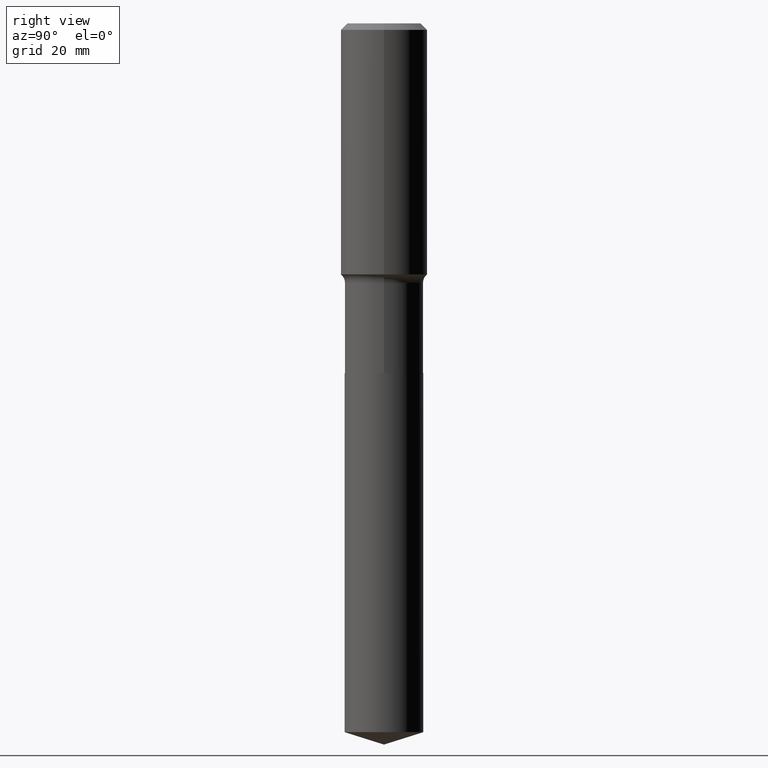
[diagram: clean part render]
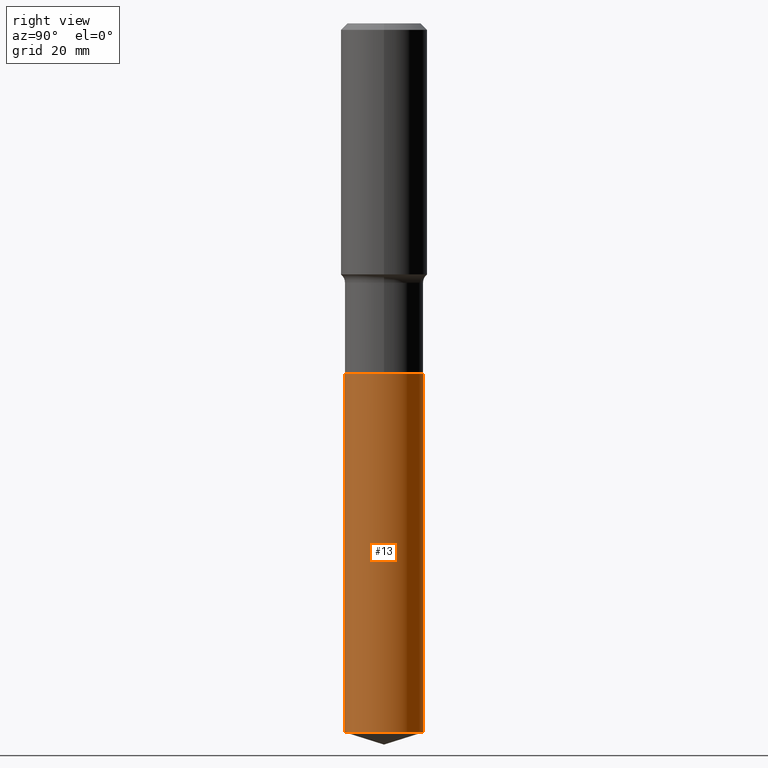
[diagram: same view with one face highlighted and labeled with its STEP entity id]
A machine part, right view. The second image highlights one B-rep face of the part: STEP entity #13.
In plain terms, the highlighted cylindrical surface (partial cylindrical patch) has radius 7.2504 mm, axis along (-0, 0, 1).
Its self-contained STEP definition (entity closure, byte-faithful):
#2 = LINE ( 'NONE', #328, #372 ) ;
#13 = ADVANCED_FACE ( 'NONE', ( #143 ), #189, .T. ) ;
#19 = EDGE_LOOP ( 'NONE', ( #323, #160, #348, #206 ) ) ;
#25 = EDGE_CURVE ( 'NONE', #57, #211, #2, .T. ) ;
#35 = DIRECTION ( 'NONE',  ( -6.982962677686265922E-15, -1.000000000000000000, 3.828128209723963046E-15 ) ) ;
#57 = VERTEX_POINT ( 'NONE', #152 ) ;
#68 = DIRECTION ( 'NONE',  ( -6.982962677686265922E-15, -1.000000000000000000, 3.828128209723963046E-15 ) ) ;
#78 = DIRECTION ( 'NONE',  ( -2.445329345240365459E-29, 3.491681054853681860E-15, 1.000000000000000000 ) ) ;
#143 = FACE_OUTER_BOUND ( 'NONE', #19, .T. ) ;
#145 = CARTESIAN_POINT ( 'NONE',  ( 6.210023486426536087E-29, -8.866267711858284157E-15, -2.539400000000000102 ) ) ;
#152 = CARTESIAN_POINT ( 'NONE',  ( -1.993286696345419132E-15, -0.2854500000000180782, -5.146197960714494535 ) ) ;
#160 = ORIENTED_EDGE ( 'NONE', *, *, #405, .T. ) ;
#172 = AXIS2_PLACEMENT_3D ( 'NONE', #448, #264, #35 ) ;
#189 = CYLINDRICAL_SURFACE ( 'NONE', #389, 0.2854499999999999815 ) ;
#194 = AXIS2_PLACEMENT_3D ( 'NONE', #219, #450, #459 ) ;
#206 = ORIENTED_EDGE ( 'NONE', *, *, #25, .F. ) ;
#211 = VERTEX_POINT ( 'NONE', #427 ) ;
#219 = CARTESIAN_POINT ( 'NONE',  ( 1.258450303687443268E-28, -1.796837476511629986E-14, -5.146197960714495423 ) ) ;
#264 = DIRECTION ( 'NONE',  ( -2.445329345240365459E-29, 3.491681054853681860E-15, 1.000000000000000000 ) ) ;
#297 = CARTESIAN_POINT ( 'NONE',  ( 2.028244239227267775E-15, 0.2854499999999910997, -2.539400000000001434 ) ) ;
#318 = CIRCLE ( 'NONE', #172, 0.2854499999999999815 ) ;
#323 = ORIENTED_EDGE ( 'NONE', *, *, #397, .T. ) ;
#328 = CARTESIAN_POINT ( 'NONE',  ( -1.993286696345482241E-15, -0.2854500000000088633, -2.539399999999999213 ) ) ;
#337 = CARTESIAN_POINT ( 'NONE',  ( 2.028244239227332461E-15, 0.2854499999999911553, -2.539400000000001434 ) ) ;
#339 = DIRECTION ( 'NONE',  ( -2.445329345240365459E-29, 3.491681054853681860E-15, 1.000000000000000000 ) ) ;
#348 = ORIENTED_EDGE ( 'NONE', *, *, #414, .F. ) ;
#368 = VERTEX_POINT ( 'NONE', #476 ) ;
#372 = VECTOR ( 'NONE', #78, 39.37007874015748143 ) ;
#379 = DIRECTION ( 'NONE',  ( -2.445329345240365459E-29, 3.491681054853681860E-15, 1.000000000000000000 ) ) ;
#382 = CIRCLE ( 'NONE', #194, 0.2854499999999999815 ) ;
#389 = AXIS2_PLACEMENT_3D ( 'NONE', #145, #339, #68 ) ;
#393 = VERTEX_POINT ( 'NONE', #337 ) ;
#397 = EDGE_CURVE ( 'NONE', #57, #368, #382, .T. ) ;
#405 = EDGE_CURVE ( 'NONE', #368, #393, #445, .T. ) ;
#414 = EDGE_CURVE ( 'NONE', #211, #393, #318, .T. ) ;
#427 = CARTESIAN_POINT ( 'NONE',  ( -1.993286696345482241E-15, -0.2854500000000088633, -2.539399999999999213 ) ) ;
#445 = LINE ( 'NONE', #297, #474 ) ;
#448 = CARTESIAN_POINT ( 'NONE',  ( 6.210023486426536087E-29, -8.866267711858284157E-15, -2.539400000000000102 ) ) ;
#450 = DIRECTION ( 'NONE',  ( -2.445329345240365459E-29, 3.491681054853681860E-15, 1.000000000000000000 ) ) ;
#459 = DIRECTION ( 'NONE',  ( -6.982962677686265922E-15, -1.000000000000000000, 3.828128209723963046E-15 ) ) ;
#474 = VECTOR ( 'NONE', #379, 39.37007874015748143 ) ;
#476 = CARTESIAN_POINT ( 'NONE',  ( 2.028244239227332461E-15, 0.2854499999999821069, -5.146197960714496311 ) ) ;